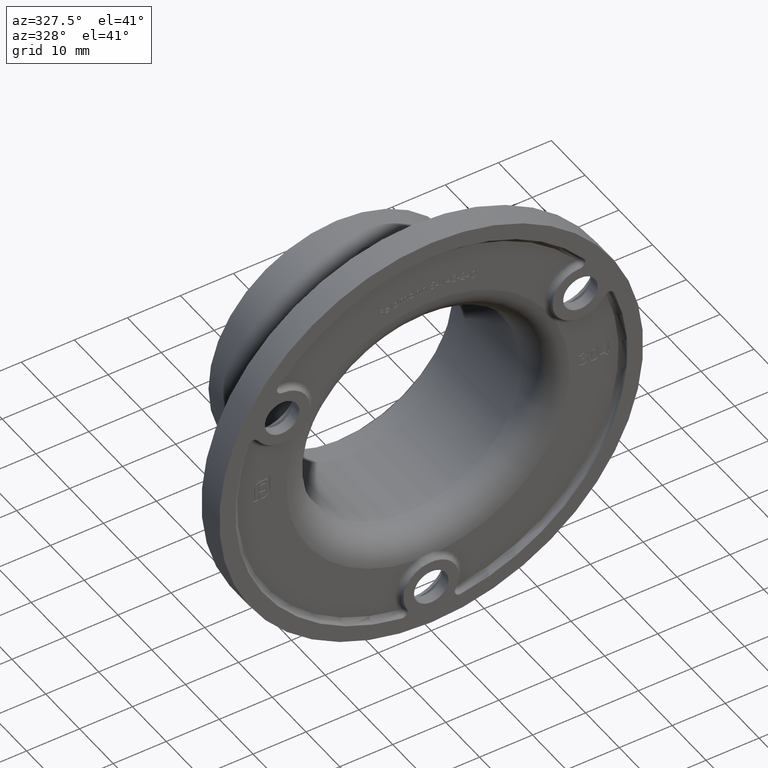
[diagram: clean part render]
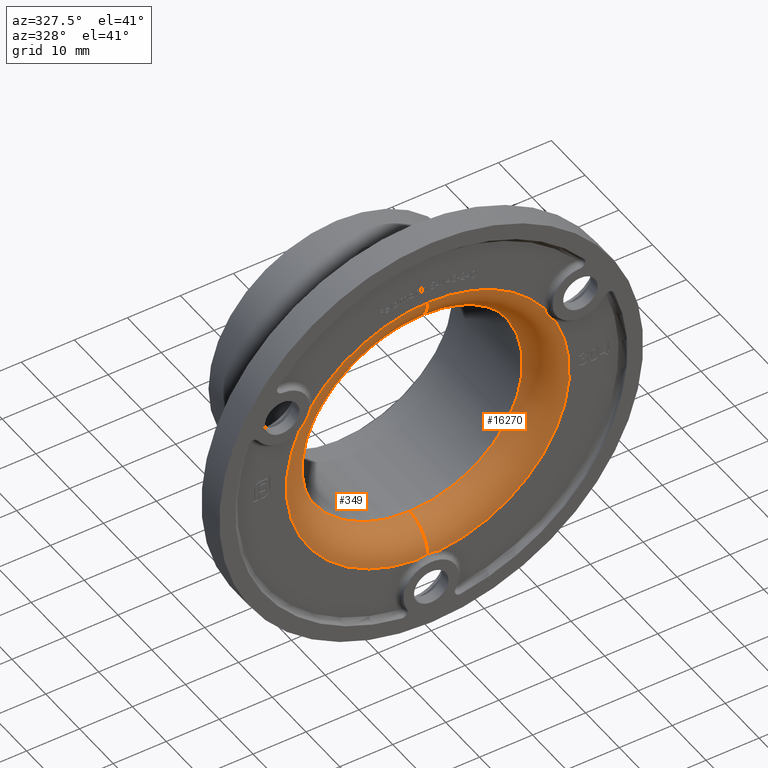
[diagram: same view with one multi-face feature highlighted, each face labeled with its STEP entity id]
A machine part, auxiliary view. The highlighted faces form ONE feature: a constant-radius fillet chain: 2 tangent blend faces with common blend radius 5.4 mm. The faces share edges in the B-rep.
Their STEP definitions:
[1] entity #349 (Torus):
#177 = ORIENTED_EDGE ( 'NONE', *, *, #16952, .F. ) ;
#235 = VERTEX_POINT ( 'NONE', #11636 ) ;
#249 = DIRECTION ( 'NONE',  ( -1.224646799147353454E-16, 0.000000000000000000, -1.000000000000000000 ) ) ;
#349 = ADVANCED_FACE ( 'NONE', ( #8479 ), #7259, .T. ) ;
#427 = CARTESIAN_POINT ( 'NONE',  ( -0.3583031066665657849, 1.013364927680382666, -26.32031250000000355 ) ) ;
#453 = AXIS2_PLACEMENT_3D ( 'NONE', #1758, #17534, #249 ) ;
#713 = CARTESIAN_POINT ( 'NONE',  ( -23.17177878764535137, 1.010848646199039802, 12.55482756730254756 ) ) ;
#1046 = CARTESIAN_POINT ( 'NONE',  ( 0.000000000000000000, 6.399999999999997691, 0.000000000000000000 ) ) ;
#1255 = CARTESIAN_POINT ( 'NONE',  ( 0.000000000000000000, 6.399999999999998579, -26.70000000000000284 ) ) ;
#1758 = CARTESIAN_POINT ( 'NONE',  ( 3.269806953723432873E-15, 6.399999999999998579, 26.70000000000000284 ) ) ;
#1805 = CARTESIAN_POINT ( 'NONE',  ( -1.416332983568541870, 1.004186530997119853, -26.44262567880466008 ) ) ;
#1867 = AXIS2_PLACEMENT_3D ( 'NONE', #1255, #10675, #2809 ) ;
#1908 = CARTESIAN_POINT ( 'NONE',  ( -24.10512607515207861, 0.9999999999999991118, 11.48185076113703929 ) ) ;
#2284 = CARTESIAN_POINT ( 'NONE',  ( -23.60824641086836806, 1.004185086877193545, 11.99461203009333232 ) ) ;
#2412 = CARTESIAN_POINT ( 'NONE',  ( 0.000000000000000000, 0.9999999999999991118, 0.000000000000000000 ) ) ;
#2685 = CARTESIAN_POINT ( 'NONE',  ( 0.000000000000000000, 6.399999999999997691, -21.30000000000000426 ) ) ;
#2809 = DIRECTION ( 'NONE',  ( 0.000000000000000000, 0.000000000000000000, 1.000000000000000000 ) ) ;
#2823 = ORIENTED_EDGE ( 'NONE', *, *, #8953, .F. ) ;
#3373 = CARTESIAN_POINT ( 'NONE',  ( -2.108988595969428115, 0.9999999999999991118, -26.61657692307692713 ) ) ;
#3381 = EDGE_CURVE ( 'NONE', #19335, #13645, #13028, .T. ) ;
#3596 = EDGE_CURVE ( 'NONE', #5511, #7116, #11521, .T. ) ;
#3861 = CARTESIAN_POINT ( 'NONE',  ( -21.99613747918269269, 0.9999999999999991118, 15.13472616193945619 ) ) ;
#3933 = CARTESIAN_POINT ( 'NONE',  ( -22.45841492510782089, 1.010842653554759663, 13.79056109869064528 ) ) ;
#4025 = CIRCLE ( 'NONE', #15694, 21.30000000000000426 ) ;
#4037 = CARTESIAN_POINT ( 'NONE',  ( 0.000000000000000000, 6.399999999999998579, 0.000000000000000000 ) ) ;
#4800 = EDGE_CURVE ( 'NONE', #9972, #18078, #7571, .T. ) ;
#4961 = CARTESIAN_POINT ( 'NONE',  ( -1.764522864759879628, 0.9999999999999991118, -26.51596813717495138 ) ) ;
#5511 = VERTEX_POINT ( 'NONE', #7732 ) ;
#5718 = DIRECTION ( 'NONE',  ( -0.000000000000000000, -1.000000000000000000, -0.000000000000000000 ) ) ;
#5831 = DIRECTION ( 'NONE',  ( -0.000000000000000000, -1.000000000000000000, -0.000000000000000000 ) ) ;
#5902 = CIRCLE ( 'NONE', #453, 5.399999999999998579 ) ;
#6163 = DIRECTION ( 'NONE',  ( 0.000000000000000000, 0.000000000000000000, -1.000000000000000000 ) ) ;
#6922 = CARTESIAN_POINT ( 'NONE',  ( -22.08120783765546236, 0.9999999999999988898, 14.78623982379816759 ) ) ;
#6988 = AXIS2_PLACEMENT_3D ( 'NONE', #2412, #7115, #15171 ) ;
#7115 = DIRECTION ( 'NONE',  ( -0.000000000000000000, -1.000000000000000000, -0.000000000000000000 ) ) ;
#7116 = VERTEX_POINT ( 'NONE', #2685 ) ;
#7197 = CARTESIAN_POINT ( 'NONE',  ( -22.61459864138391751, 1.013361452166624321, 13.47106723832301789 ) ) ;
#7259 = TOROIDAL_SURFACE ( 'NONE', #17975, 26.70000000000000284, 5.399999999999999467 ) ;
#7571 = CIRCLE ( 'NONE', #8849, 26.70000000000000284 ) ;
#7732 = CARTESIAN_POINT ( 'NONE',  ( -4.523512828942297960E-14, 1.013364927680383332, -26.32031250000000355 ) ) ;
#7748 = B_SPLINE_CURVE_WITH_KNOTS ( 'NONE', 3,
 ( #3861, #6922, #19670, #3933, #7197, #19535, #713, #2284, #10198, #19805 ),
 .UNSPECIFIED., .F., .F.,
 ( 4, 2, 2, 2, 4 ),
 ( 0.000000000000000000, 0.001064454883328467931, 0.002128909766656935862, 0.003193364649985403793, 0.004257819533313871724 ),
 .UNSPECIFIED. ) ;
#7907 = DIRECTION ( 'NONE',  ( -0.000000000000000000, -1.000000000000000000, -0.000000000000000000 ) ) ;
#8479 = FACE_OUTER_BOUND ( 'NONE', #11150, .T. ) ;
#8849 = AXIS2_PLACEMENT_3D ( 'NONE', #14106, #7907, #6163 ) ;
#8903 = ORIENTED_EDGE ( 'NONE', *, *, #3381, .T. ) ;
#8953 = EDGE_CURVE ( 'NONE', #19335, #235, #5902, .T. ) ;
#9972 = VERTEX_POINT ( 'NONE', #1908 ) ;
#10198 = CARTESIAN_POINT ( 'NONE',  ( -23.84587688766766078, 0.9999999999999954481, 11.72975396438010165 ) ) ;
#10333 = CARTESIAN_POINT ( 'NONE',  ( -2.108988595969428115, 0.9999999999999991118, -26.61657692307692713 ) ) ;
#10675 = DIRECTION ( 'NONE',  ( -1.000000000000000000, 0.000000000000000000, 0.000000000000000000 ) ) ;
#11150 = EDGE_LOOP ( 'NONE', ( #2823, #8903, #15995, #20340, #18990, #17403, #177 ) ) ;
#11198 = EDGE_CURVE ( 'NONE', #18078, #5511, #19589, .T. ) ;
#11521 = CIRCLE ( 'NONE', #1867, 5.399999999999998579 ) ;
#11636 = CARTESIAN_POINT ( 'NONE',  ( 2.939152317953649078E-15, 6.399999999999997691, 21.30000000000000426 ) ) ;
#12807 = CARTESIAN_POINT ( 'NONE',  ( -21.99613747918269269, 0.9999999999999991118, 15.13472616193945619 ) ) ;
#13028 = CIRCLE ( 'NONE', #6988, 26.70000000000000284 ) ;
#13645 = VERTEX_POINT ( 'NONE', #12807 ) ;
#14106 = CARTESIAN_POINT ( 'NONE',  ( 0.000000000000000000, 0.9999999999999991118, 0.000000000000000000 ) ) ;
#15171 = DIRECTION ( 'NONE',  ( 0.000000000000000000, 0.000000000000000000, -1.000000000000000000 ) ) ;
#15694 = AXIS2_PLACEMENT_3D ( 'NONE', #1046, #5718, #16757 ) ;
#15995 = ORIENTED_EDGE ( 'NONE', *, *, #16734, .T. ) ;
#16010 = CARTESIAN_POINT ( 'NONE',  ( -4.523512828942297960E-14, 1.013364927680383332, -26.32031250000000355 ) ) ;
#16734 = EDGE_CURVE ( 'NONE', #13645, #9972, #7748, .T. ) ;
#16757 = DIRECTION ( 'NONE',  ( 0.000000000000000000, 0.000000000000000000, -1.000000000000000000 ) ) ;
#16952 = EDGE_CURVE ( 'NONE', #235, #7116, #4025, .T. ) ;
#17403 = ORIENTED_EDGE ( 'NONE', *, *, #3596, .T. ) ;
#17534 = DIRECTION ( 'NONE',  ( 1.000000000000000000, 0.000000000000000000, -1.224646799147353207E-16 ) ) ;
#17975 = AXIS2_PLACEMENT_3D ( 'NONE', #4037, #5831, #18178 ) ;
#18078 = VERTEX_POINT ( 'NONE', #10333 ) ;
#18178 = DIRECTION ( 'NONE',  ( 0.000000000000000000, 0.000000000000000000, -1.000000000000000000 ) ) ;
#18990 = ORIENTED_EDGE ( 'NONE', *, *, #11198, .T. ) ;
#19311 = CARTESIAN_POINT ( 'NONE',  ( -0.7132251398413593790, 1.010847354940539011, -26.34478208603194105 ) ) ;
#19335 = VERTEX_POINT ( 'NONE', #20345 ) ;
#19535 = CARTESIAN_POINT ( 'NONE',  ( -22.97269283725043465, 1.013368395177203674, 12.85067791671898796 ) ) ;
#19589 = B_SPLINE_CURVE_WITH_KNOTS ( 'NONE', 3,
 ( #3373, #4961, #1805, #19311, #427, #16010 ),
 .UNSPECIFIED., .F., .F.,
 ( 4, 2, 4 ),
 ( 1.301042606982605321E-18, 0.001064864580952069872, 0.002129729161904138444 ),
 .UNSPECIFIED. ) ;
#19670 = CARTESIAN_POINT ( 'NONE',  ( -22.19173418904025752, 1.004183543806143497, 14.44815351054808161 ) ) ;
#19805 = CARTESIAN_POINT ( 'NONE',  ( -24.10512607515207861, 0.9999999999999991118, 11.48185076113703929 ) ) ;
#20340 = ORIENTED_EDGE ( 'NONE', *, *, #4800, .T. ) ;
#20345 = CARTESIAN_POINT ( 'NONE',  ( 3.269806953723432873E-15, 0.9999999999999991118, 26.70000000000000284 ) ) ;
[2] entity #16270 (Torus):
#235 = VERTEX_POINT ( 'NONE', #11636 ) ;
#249 = DIRECTION ( 'NONE',  ( -1.224646799147353454E-16, 0.000000000000000000, -1.000000000000000000 ) ) ;
#250 = CARTESIAN_POINT ( 'NONE',  ( 0.000000000000000000, 0.9999999999999991118, 0.000000000000000000 ) ) ;
#453 = AXIS2_PLACEMENT_3D ( 'NONE', #1758, #17534, #249 ) ;
#1022 = CARTESIAN_POINT ( 'NONE',  ( 1.764806053830014099, 0.9999999999999963363, -26.51605084876553775 ) ) ;
#1096 = CARTESIAN_POINT ( 'NONE',  ( 2.108988595969427671, 0.9999999999999991118, -26.61657692307692002 ) ) ;
#1255 = CARTESIAN_POINT ( 'NONE',  ( 0.000000000000000000, 6.399999999999998579, -26.70000000000000284 ) ) ;
#1336 = CARTESIAN_POINT ( 'NONE',  ( 24.10512607515190453, 0.9999999999999991118, 11.48185076113741943 ) ) ;
#1408 = CARTESIAN_POINT ( 'NONE',  ( 22.97358576516802486, 1.013361452166624765, 12.84928330066591329 ) ) ;
#1758 = CARTESIAN_POINT ( 'NONE',  ( 3.269806953723432873E-15, 6.399999999999998579, 26.70000000000000284 ) ) ;
#1831 = DIRECTION ( 'NONE',  ( -0.000000000000000000, -1.000000000000000000, -0.000000000000000000 ) ) ;
#1867 = AXIS2_PLACEMENT_3D ( 'NONE', #1255, #10675, #2809 ) ;
#1984 = DIRECTION ( 'NONE',  ( -0.000000000000000000, -1.000000000000000000, -0.000000000000000000 ) ) ;
#2073 = EDGE_CURVE ( 'NONE', #19871, #2745, #10312, .T. ) ;
#2564 = EDGE_CURVE ( 'NONE', #5511, #19871, #4218, .T. ) ;
#2622 = AXIS2_PLACEMENT_3D ( 'NONE', #250, #1831, #19270 ) ;
#2685 = CARTESIAN_POINT ( 'NONE',  ( 0.000000000000000000, 6.399999999999997691, -21.30000000000000426 ) ) ;
#2707 = CARTESIAN_POINT ( 'NONE',  ( 2.108988595969427671, 0.9999999999999991118, -26.61657692307692002 ) ) ;
#2745 = VERTEX_POINT ( 'NONE', #17012 ) ;
#2777 = CARTESIAN_POINT ( 'NONE',  ( 0.000000000000000000, 0.9999999999999991118, 0.000000000000000000 ) ) ;
#2809 = DIRECTION ( 'NONE',  ( 0.000000000000000000, 0.000000000000000000, 1.000000000000000000 ) ) ;
#2889 = CARTESIAN_POINT ( 'NONE',  ( 22.08120335712830240, 0.9999999999999963363, 14.78625817804619480 ) ) ;
#2963 = CARTESIAN_POINT ( 'NONE',  ( 23.84586323268612418, 0.9999999999999988898, 11.72976702175451713 ) ) ;
#3159 = ORIENTED_EDGE ( 'NONE', *, *, #12609, .T. ) ;
#3389 = AXIS2_PLACEMENT_3D ( 'NONE', #7039, #13511, #15091 ) ;
#3596 = EDGE_CURVE ( 'NONE', #5511, #7116, #11521, .T. ) ;
#3845 = ORIENTED_EDGE ( 'NONE', *, *, #2564, .T. ) ;
#4145 = ORIENTED_EDGE ( 'NONE', *, *, #7893, .F. ) ;
#4218 = B_SPLINE_CURVE_WITH_KNOTS ( 'NONE', 3,
 ( #9082, #13564, #7517, #10373, #1022, #1096 ),
 .UNSPECIFIED., .F., .F.,
 ( 4, 2, 4 ),
 ( 0.002129729161904138444, 0.003193774347609007469, 0.004257819533313876928 ),
 .UNSPECIFIED. ) ;
#4693 = CARTESIAN_POINT ( 'NONE',  ( 21.99613747918250795, 0.9999999999999991118, 15.13472616193971731 ) ) ;
#5268 = TOROIDAL_SURFACE ( 'NONE', #3389, 26.70000000000000284, 5.399999999999999467 ) ;
#5432 = ORIENTED_EDGE ( 'NONE', *, *, #3596, .F. ) ;
#5511 = VERTEX_POINT ( 'NONE', #7732 ) ;
#5902 = CIRCLE ( 'NONE', #453, 5.399999999999998579 ) ;
#5960 = DIRECTION ( 'NONE',  ( 0.000000000000000000, 0.000000000000000000, -1.000000000000000000 ) ) ;
#5992 = FACE_OUTER_BOUND ( 'NONE', #7676, .T. ) ;
#6083 = CARTESIAN_POINT ( 'NONE',  ( 23.17218370646149950, 1.010842653554760329, 12.55427730452954904 ) ) ;
#7039 = CARTESIAN_POINT ( 'NONE',  ( 0.000000000000000000, 6.399999999999998579, 0.000000000000000000 ) ) ;
#7116 = VERTEX_POINT ( 'NONE', #2685 ) ;
#7517 = CARTESIAN_POINT ( 'NONE',  ( 0.7136339638195635660, 1.010843940185009338, -26.34481923459125241 ) ) ;
#7676 = EDGE_LOOP ( 'NONE', ( #3159, #18574, #4145, #5432, #3845, #13423, #18116 ) ) ;
#7732 = CARTESIAN_POINT ( 'NONE',  ( -4.523512828942297960E-14, 1.013364927680383332, -26.32031250000000355 ) ) ;
#7893 = EDGE_CURVE ( 'NONE', #7116, #235, #15826, .T. ) ;
#8953 = EDGE_CURVE ( 'NONE', #19335, #235, #5902, .T. ) ;
#9082 = CARTESIAN_POINT ( 'NONE',  ( -4.523512828942297960E-14, 1.013364927680383332, -26.32031250000000355 ) ) ;
#10312 = CIRCLE ( 'NONE', #2622, 26.70000000000000284 ) ;
#10373 = CARTESIAN_POINT ( 'NONE',  ( 1.416752480201971531, 1.004182098197393680, -26.44270382155951538 ) ) ;
#10675 = DIRECTION ( 'NONE',  ( -1.000000000000000000, 0.000000000000000000, 0.000000000000000000 ) ) ;
#10685 = CARTESIAN_POINT ( 'NONE',  ( 23.60833507243212637, 1.004183543806144607, 11.99452880646640018 ) ) ;
#11521 = CIRCLE ( 'NONE', #1867, 5.399999999999998579 ) ;
#11547 = CARTESIAN_POINT ( 'NONE',  ( 0.000000000000000000, 6.399999999999997691, 0.000000000000000000 ) ) ;
#11636 = CARTESIAN_POINT ( 'NONE',  ( 2.939152317953649078E-15, 6.399999999999997691, 21.30000000000000426 ) ) ;
#11801 = AXIS2_PLACEMENT_3D ( 'NONE', #2777, #15412, #5960 ) ;
#12354 = CARTESIAN_POINT ( 'NONE',  ( 22.45868900723993278, 1.010848646199039580, 13.78993529732285950 ) ) ;
#12609 = EDGE_CURVE ( 'NONE', #20096, #19335, #14255, .T. ) ;
#13025 = EDGE_CURVE ( 'NONE', #2745, #20096, #19722, .T. ) ;
#13136 = DIRECTION ( 'NONE',  ( 0.000000000000000000, 0.000000000000000000, -1.000000000000000000 ) ) ;
#13423 = ORIENTED_EDGE ( 'NONE', *, *, #2073, .T. ) ;
#13511 = DIRECTION ( 'NONE',  ( -0.000000000000000000, -1.000000000000000000, -0.000000000000000000 ) ) ;
#13564 = CARTESIAN_POINT ( 'NONE',  ( 0.3580273984985911095, 1.013364927680382666, -26.32031250000000355 ) ) ;
#14255 = CIRCLE ( 'NONE', #11801, 26.70000000000000284 ) ;
#15091 = DIRECTION ( 'NONE',  ( 0.000000000000000000, 0.000000000000000000, -1.000000000000000000 ) ) ;
#15412 = DIRECTION ( 'NONE',  ( -0.000000000000000000, -1.000000000000000000, -0.000000000000000000 ) ) ;
#15826 = CIRCLE ( 'NONE', #16792, 21.30000000000000426 ) ;
#16270 = ADVANCED_FACE ( 'NONE', ( #5992 ), #5268, .T. ) ;
#16792 = AXIS2_PLACEMENT_3D ( 'NONE', #11547, #1984, #13136 ) ;
#17012 = CARTESIAN_POINT ( 'NONE',  ( 24.10512607515190453, 0.9999999999999991118, 11.48185076113741943 ) ) ;
#17047 = CARTESIAN_POINT ( 'NONE',  ( 22.19176193203352909, 1.004185086877193545, 14.44803511556799691 ) ) ;
#17469 = CARTESIAN_POINT ( 'NONE',  ( 21.99613747918250795, 0.9999999999999991118, 15.13472616193971731 ) ) ;
#17534 = DIRECTION ( 'NONE',  ( 1.000000000000000000, 0.000000000000000000, -1.224646799147353207E-16 ) ) ;
#18116 = ORIENTED_EDGE ( 'NONE', *, *, #13025, .T. ) ;
#18574 = ORIENTED_EDGE ( 'NONE', *, *, #8953, .T. ) ;
#18789 = CARTESIAN_POINT ( 'NONE',  ( 22.61535995035561442, 1.013368395177203896, 13.46959663203607782 ) ) ;
#19270 = DIRECTION ( 'NONE',  ( 0.000000000000000000, 0.000000000000000000, -1.000000000000000000 ) ) ;
#19335 = VERTEX_POINT ( 'NONE', #20345 ) ;
#19722 = B_SPLINE_CURVE_WITH_KNOTS ( 'NONE', 3,
 ( #1336, #2963, #10685, #6083, #1408, #18789, #12354, #17047, #2889, #4693 ),
 .UNSPECIFIED., .F., .F.,
 ( 4, 2, 2, 2, 4 ),
 ( 0.000000000000000000, 0.001064454883328443211, 0.002128909766656886422, 0.003193364649985329633, 0.004257819533313772845 ),
 .UNSPECIFIED. ) ;
#19871 = VERTEX_POINT ( 'NONE', #2707 ) ;
#20096 = VERTEX_POINT ( 'NONE', #17469 ) ;
#20345 = CARTESIAN_POINT ( 'NONE',  ( 3.269806953723432873E-15, 0.9999999999999991118, 26.70000000000000284 ) ) ;